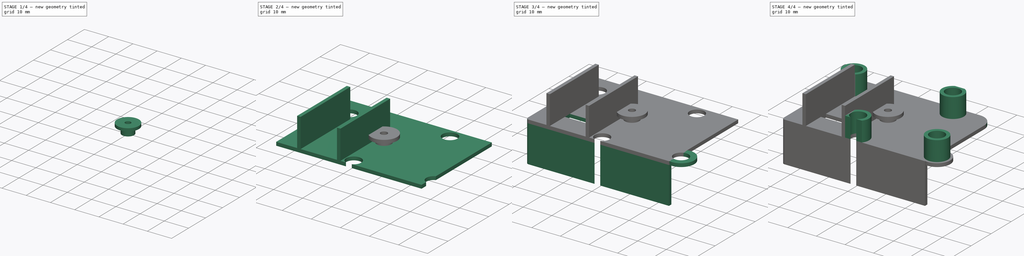
[diagram: build sequence overview — one tinted view per stage of 4, left to right]
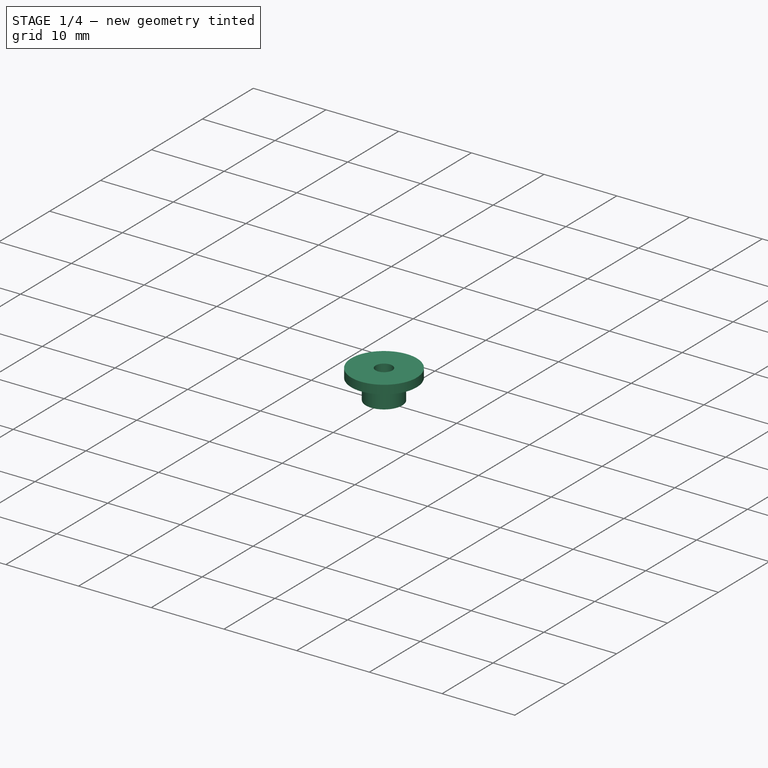
[diagram: stage 1 of 4 — iso view after this stage's code; geometry added in this stage tinted green]
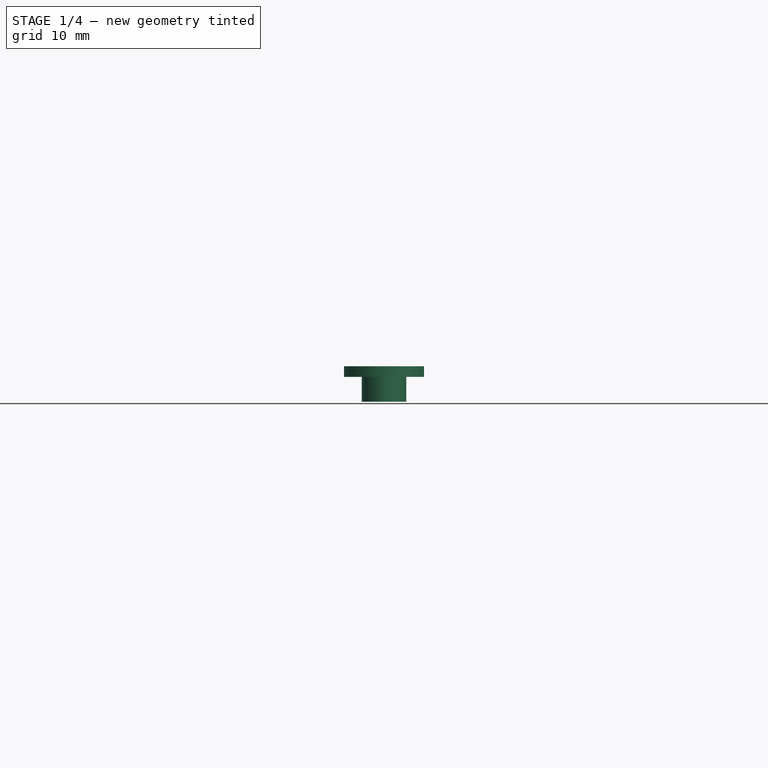
[diagram: stage 1 of 4 — front view after this stage's code; geometry added in this stage tinted green]
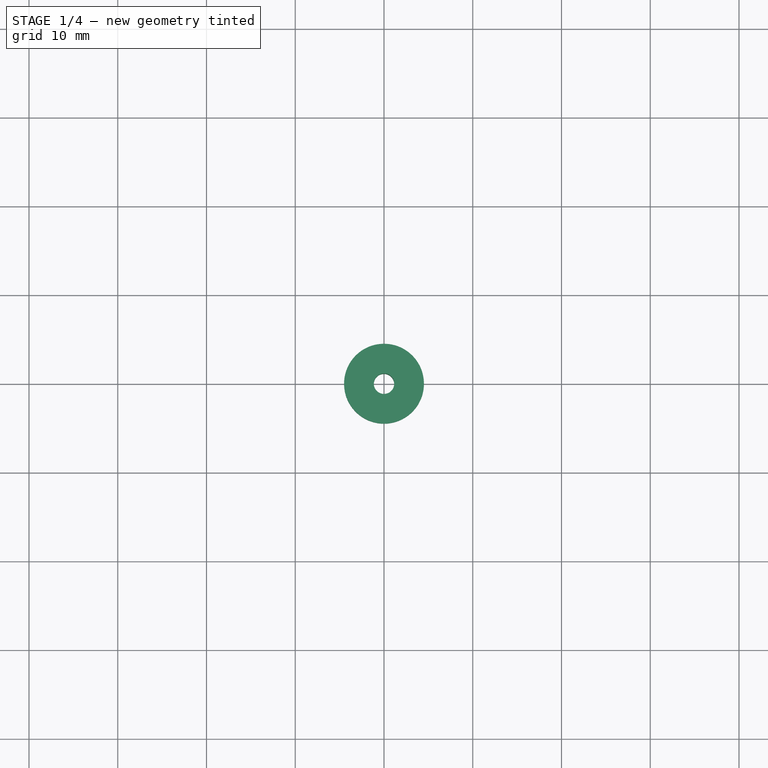
[diagram: stage 1 of 4 — top view after this stage's code; geometry added in this stage tinted green]
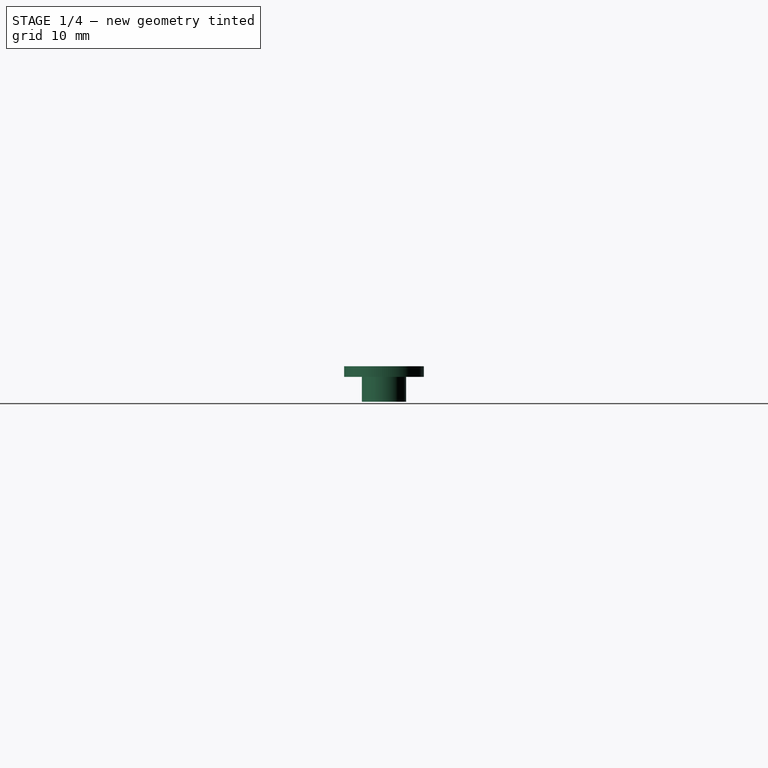
[diagram: stage 1 of 4 — right view after this stage's code; geometry added in this stage tinted green]
FCSTD DOCUMENT  (FreeCAD 0.19R24267 +148 (Git))
Label: 01-BaseMotor
License: All rights reserved
LicenseURL: http://en.wikipedia.org/wiki/All_rights_reserved
objects: Sketcher::SketchObject×11, PartDesign::Pad×7, PartDesign::Pocket×4, PartDesign::Fillet×2, PartDesign::Body×2, App::Part×2
note: 39 computed .brp shape members not serialized (recipe doc carries the construction recipe); baked Part::Feature solids carry a one-line shape summary decoded from their .brp

FEATURE [PartDesign::Body] Body
  Group = -> [Sketch,Pad,Sketch001,Pocket,Sketch002,Pad001,Sketch003,Pad002,Sketch004,Pocket001,Sketch005,Pad003,Fillet,Fillet001,Sketch006,Pad004,Sketch007,Pocket002]
  Origin = -> Origin001
  Tip = -> Pocket002
FEATURE [App::Part] Part  label="BaseMotor"
  Group = -> [Body]
  Origin = -> Origin
FEATURE [Sketcher::SketchObject] Sketch008  label="Base"
  FullyConstrained = true
  MapMode = 5
  Support = -> [XY_Plane003]
  sketch-geometry (1):
    g0: Circle CenterX=0 CenterY=0 CenterZ=0 NormalX=0 NormalY=0 NormalZ=1 AngleXU=0 Radius=2.5
  constraints (2):
    c: Coincident(g0,g-1)
    c: Radius(g0) = 2.5
FEATURE [PartDesign::Pad] Pad005  label="BasePad"
  Direction = (1,1,1)
  Length = 4
  Length2 = 100
  Profile = -> Sketch008
  Type = 0
FEATURE [Sketcher::SketchObject] Sketch010  label="Cabeca"
  FullyConstrained = true
  MapMode = 5
  Placement = pos=(0,0,4) rot=(0,0,1;0rad)
  sketch-geometry (1):
    g0: Circle CenterX=0 CenterY=0 CenterZ=0 NormalX=0 NormalY=0 NormalZ=1 AngleXU=0 Radius=4.5
  constraints (2):
    c: Coincident(g0,g-1)
    c: Radius(g0) = 4.5
FEATURE [PartDesign::Pad] Pad006  label="CabecaPad"
  BaseFeature = -> Pad005
  Direction = (1,1,1)
  Length = 1.2
  Length2 = 100
  Profile = -> Sketch010
  Reversed = true
  Type = 0
FEATURE [Sketcher::SketchObject] Sketch011  label="Furo"
  FullyConstrained = true
  MapMode = 5
  Placement = pos=(0,0,4) rot=(0,0,1;0rad)
  Support = -> [Pad006]
  sketch-geometry (1):
    g0: Circle CenterX=0 CenterY=0 CenterZ=0 NormalX=0 NormalY=0 NormalZ=1 AngleXU=0 Radius=1.15
  constraints (2):
    c: Coincident(g0,g-1)
    c: Radius(g0) = 1.15
FEATURE [PartDesign::Pocket] Pocket003  label="FuroPad"
  BaseFeature = -> Pad006
  Length = 5
  Length2 = 100
  Profile = -> Sketch011
  Type = 1
FEATURE [PartDesign::Body] Body001
  Group = -> [Sketch008,Pad005,Sketch010,Pad006,Sketch011,Pocket003]
  Origin = -> Origin003
  Tip = -> Pocket003
FEATURE [App::Part] Part001  label="JuncaoCaixaDirecao"
  Group = -> [Body001]
  Origin = -> Origin002
  Placement = pos=(-58,0,0) rot=(0,0,1;0rad)
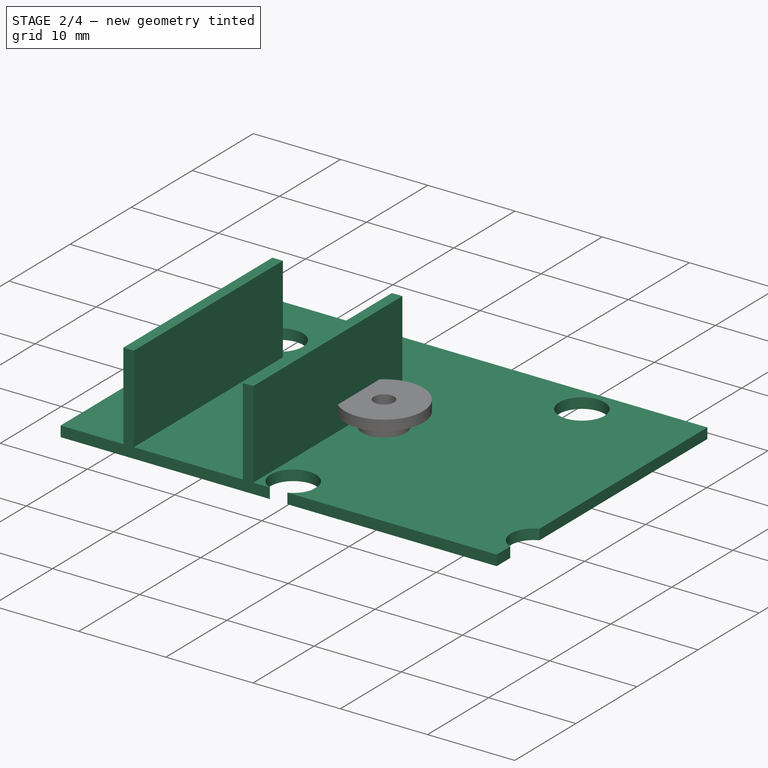
[diagram: stage 2 of 4 — iso view after this stage's code; geometry added in this stage tinted green]
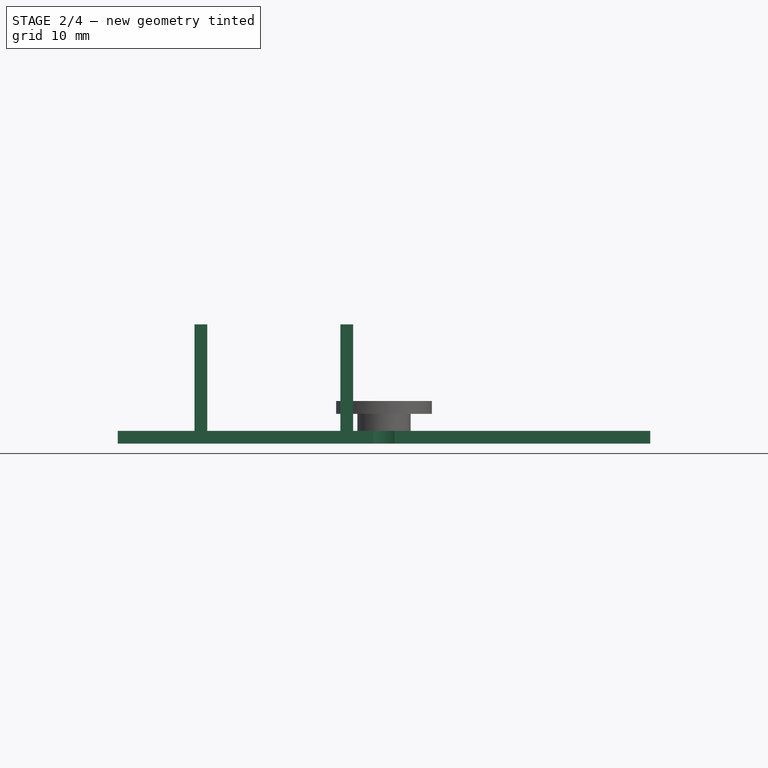
[diagram: stage 2 of 4 — front view after this stage's code; geometry added in this stage tinted green]
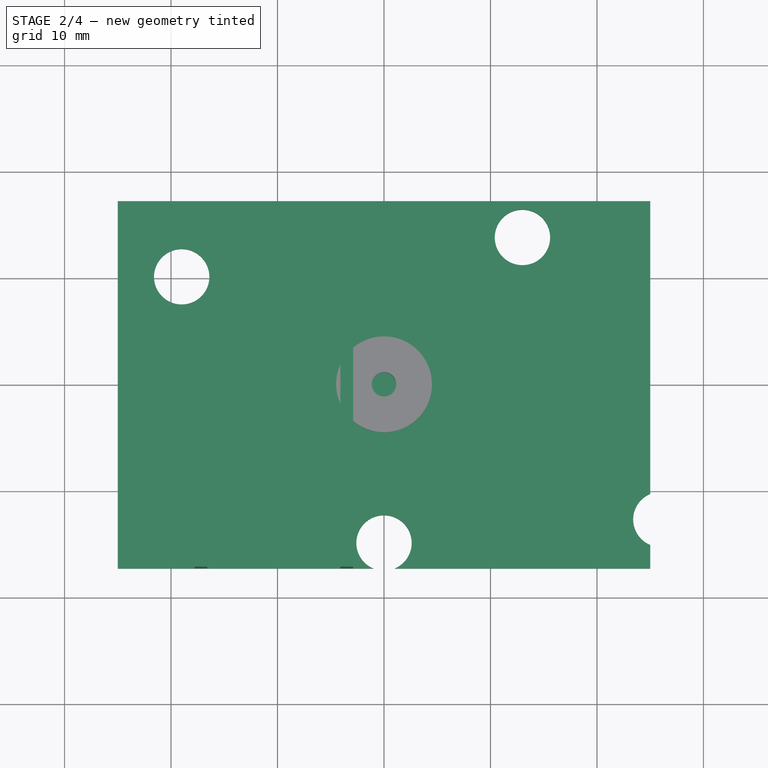
[diagram: stage 2 of 4 — top view after this stage's code; geometry added in this stage tinted green]
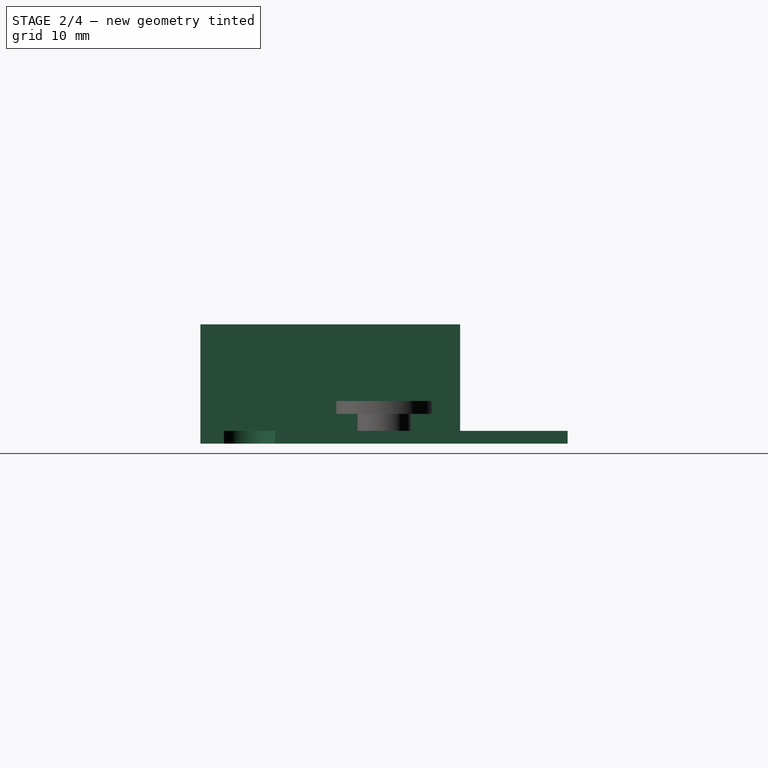
[diagram: stage 2 of 4 — right view after this stage's code; geometry added in this stage tinted green]
FEATURE [Sketcher::SketchObject] Sketch  label="Plataforma"
  FullyConstrained = true
  MapMode = 5
  Support = -> [XY_Plane001]
  sketch-geometry (4):
    g0: LineSegment StartX=-25 StartY=17.25 StartZ=0 EndX=25 EndY=17.25 EndZ=0
    g1: LineSegment StartX=25 StartY=17.25 StartZ=0 EndX=25 EndY=-17.25 EndZ=0
    g2: LineSegment StartX=25 StartY=-17.25 StartZ=0 EndX=-25 EndY=-17.25 EndZ=0
    g3: LineSegment StartX=-25 StartY=-17.25 StartZ=0 EndX=-25 EndY=17.25 EndZ=0
  constraints (10):
    c: Coincident(g0,g1)
    c: Coincident(g1,g2)
    c: Coincident(g2,g3)
    c: Coincident(g3,g0)
    c: Horizontal(g2)
    c: Vertical(g1)
    c: Symmetric(g0,g0,g-2)
    c: Symmetric(g0,g2,g-1)
    c: DistanceY(g3,g3) = 34.5
    c: DistanceX(g0,g0) = 50  'PlataformaWidth'
FEATURE [PartDesign::Pad] Pad  label="PlataformaPad"
  Direction = (1,1,1)
  Length = 1.2
  Length2 = 100
  Profile = -> Sketch
  Type = 0
FEATURE [Sketcher::SketchObject] Sketch001  label="Furos"
  ExternalGeometry = -> [Pad]
  FullyConstrained = true
  MapMode = 5
  Placement = pos=(0,0,1.2) rot=(0,0,1;0rad)
  Support = -> [Pad]
  expr: Constraints[2] = .Constraints.FuroPrincipalRaio
  expr: Constraints[3] = .Constraints.FuroPrincipalRaio
  expr: Constraints[4] = .Constraints.FuroPrincipalRaio
  sketch-geometry (4):
    g0: Circle CenterX=0 CenterY=-14.85 CenterZ=0 NormalX=0 NormalY=0 NormalZ=1 AngleXU=0 Radius=2.6
    g1: Circle CenterX=-19 CenterY=10.15 CenterZ=0 NormalX=0 NormalY=0 NormalZ=1 AngleXU=0 Radius=2.6
    g2: Circle CenterX=13 CenterY=13.8423 CenterZ=0 NormalX=0 NormalY=0 NormalZ=1 AngleXU=0 Radius=2.6
    g3: Circle CenterX=26 CenterY=-12.6388 CenterZ=0 NormalX=0 NormalY=0 NormalZ=1 AngleXU=0 Radius=2.6
  constraints (12):
    c: PointOnObject(g0,g-2)  'FuroPrincipalPontoInicial'
    c: Radius(g0) = 2.6  'FuroPrincipalRaio'
    c: Radius(g1) = 2.6
    c: Radius(g2) = 2.6
    c: Radius(g3) = 2.6
    c: DistanceX(g0,g3) = 26
    c: Distance(g2,g3) = 29.5
    c: Distance(g0,g2) = 31.5
    c: DistanceY(g-3,g0) = 2.4
    c: DistanceX(g1,g0) = 19
    c: DistanceY(g0,g1) = 25
    c: DistanceX(g1,g2) = 32
FEATURE [PartDesign::Pocket] Pocket  label="FurosPocket"
  BaseFeature = -> Pad
  Length = 5
  Length2 = 100
  Profile = -> Sketch001
  Type = 1
FEATURE [Sketcher::SketchObject] Sketch002  label="ParedesMotor"
  ExternalGeometry = -> [Pocket]
  FullyConstrained = true
  MapMode = 5
  Placement = pos=(0,0,1.2) rot=(0,0,1;0rad)
  Support = -> [Pocket]
  sketch-geometry (8):
    g0: LineSegment StartX=-4.1 StartY=7.15 StartZ=0 EndX=-4.1 EndY=-17.25 EndZ=0
    g1: LineSegment StartX=-16.6 StartY=-17.25 StartZ=0 EndX=-16.6 EndY=7.15 EndZ=0
    g2: LineSegment StartX=-2.9 StartY=7.15 StartZ=0 EndX=-4.1 EndY=7.15 EndZ=0
    g3: LineSegment StartX=-16.6 StartY=7.15 StartZ=0 EndX=-17.8 EndY=7.15 EndZ=0
    g4: LineSegment StartX=-17.8 StartY=7.15 StartZ=0 EndX=-17.8 EndY=-17.25 EndZ=0
    g5: LineSegment StartX=-16.6 StartY=-17.25 StartZ=0 EndX=-17.8 EndY=-17.25 EndZ=0
    g6: LineSegment StartX=-2.9 StartY=7.15 StartZ=0 EndX=-2.9 EndY=-17.25 EndZ=0
    g7: LineSegment StartX=-4.1 StartY=-17.25 StartZ=0 EndX=-2.9 EndY=-17.25 EndZ=0
  constraints (25):
    c: Vertical(g0)
    c: Vertical(g1)
    c: Horizontal(g2)
    c: DistanceX(g0,g2) = 1.2
    c: DistanceX(g3,g2) = 14.9
    c: DistanceY(g0,g2) = 0
    c: PointOnObject(g2,g0)
    c: PointOnObject(g3,g1)
    c: Tangent(g2,g3)
    c: Coincident(g4,g3)
    c: PointOnObject(g4,g-4)
    c: Vertical(g4)
    c: Coincident(g5,g1)
    c: Coincident(g5,g4)
    c: Horizontal(g5)
    c: Coincident(g6,g2)
    c: PointOnObject(g6,g-4)
    c: Vertical(g6)
    c: Coincident(g7,g0)
    c: Coincident(g7,g6)
    c: Horizontal(g7)
    c: DistanceX(g1,g0) = 12.5
    c: DistanceX(g-3,g1) = 2.4
    c: DistanceY(g4,g4) = 24.4
    c: DistanceY(g1,g3) = 0
FEATURE [PartDesign::Pad] Pad001  label="ParedesMotorPad"
  BaseFeature = -> Pocket
  Direction = (1,1,1)
  Length = 10
  Length2 = 100
  Profile = -> Sketch002
  Type = 0
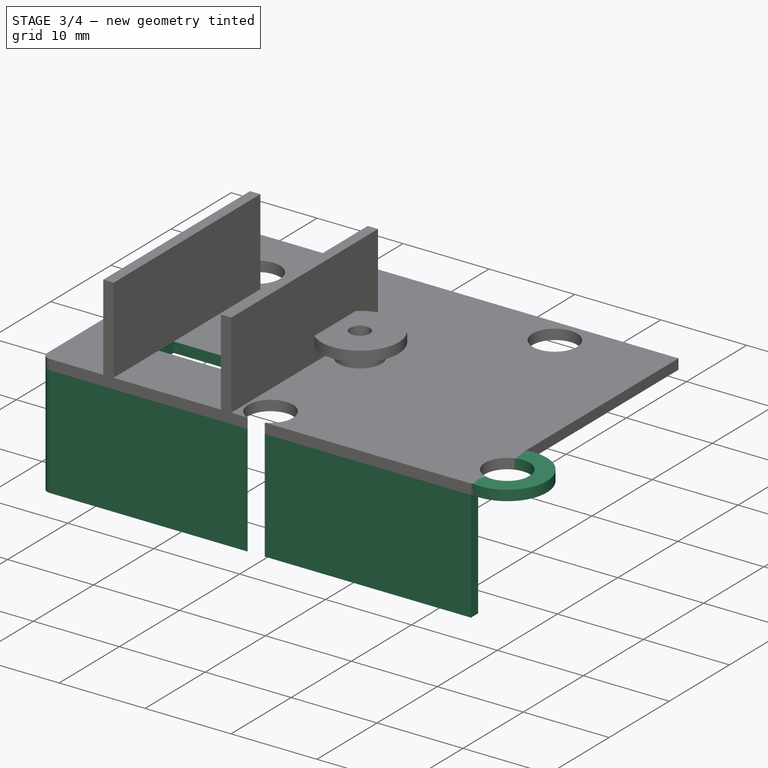
[diagram: stage 3 of 4 — iso view after this stage's code; geometry added in this stage tinted green]
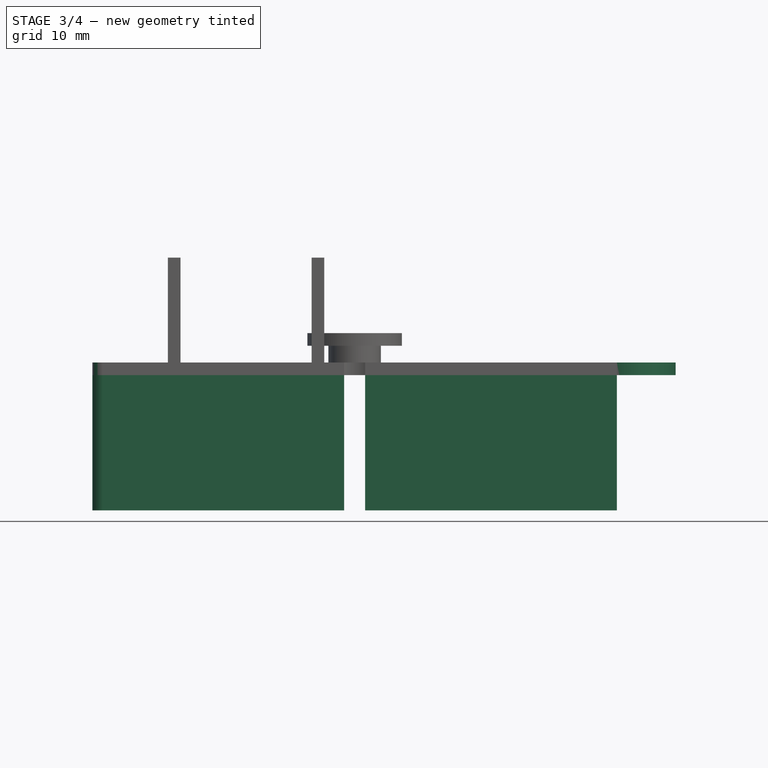
[diagram: stage 3 of 4 — front view after this stage's code; geometry added in this stage tinted green]
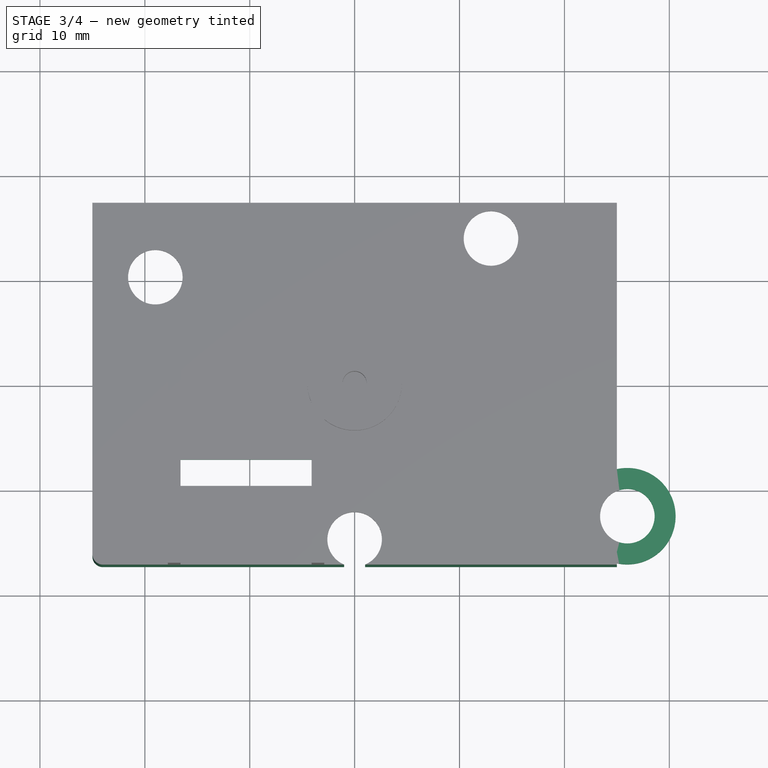
[diagram: stage 3 of 4 — top view after this stage's code; geometry added in this stage tinted green]
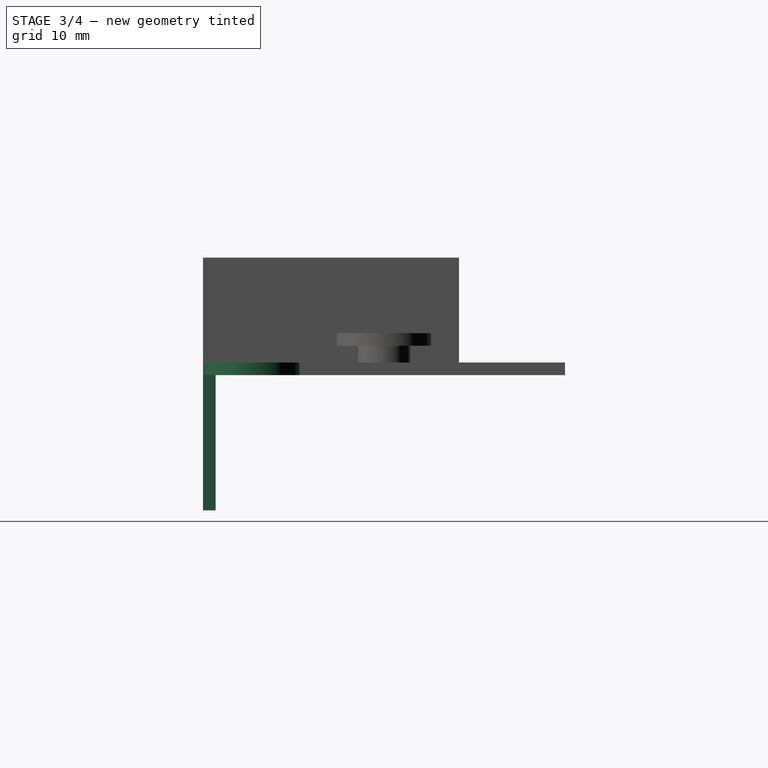
[diagram: stage 3 of 4 — right view after this stage's code; geometry added in this stage tinted green]
FEATURE [Sketcher::SketchObject] Sketch003  label="ApoioBase"
  ExternalGeometry = -> [Pad001]
  FullyConstrained = true
  MapMode = 5
  Placement = pos=(0,-17.25,0) rot=(1,0,0;1.5708rad)
  Support = -> [Pad001]
  expr: Constraints[10] = <<Plataforma>>.Constraints.PlataformaWidth
  sketch-geometry (4):
    g0: LineSegment StartX=-25 StartY=1.2 StartZ=0 EndX=25 EndY=1.2 EndZ=0
    g1: LineSegment StartX=25 StartY=1.2 StartZ=0 EndX=25 EndY=-12.9 EndZ=0
    g2: LineSegment StartX=25 StartY=-12.9 StartZ=0 EndX=-25 EndY=-12.9 EndZ=0
    g3: LineSegment StartX=-25 StartY=-12.9 StartZ=0 EndX=-25 EndY=1.2 EndZ=0
  constraints (11):
    c: Coincident(g0,g1)
    c: Coincident(g1,g2)
    c: Coincident(g2,g3)
    c: Coincident(g3,g0)
    c: Horizontal(g0)
    c: Horizontal(g2)
    c: Vertical(g1)
    c: Vertical(g3)
    c: Coincident(g0,g-3)
    c: DistanceY(g3,g3) = 14.1
    c: DistanceX(g0,g0) = 50
FEATURE [PartDesign::Pad] Pad002  label="ApoioBasePad"
  BaseFeature = -> Pad001
  Direction = (1,1,1)
  Length = 1.2
  Length2 = 100
  Profile = -> Sketch003
  Reversed = true
  Type = 0
FEATURE [Sketcher::SketchObject] Sketch004  label="GapApoioMotor"
  ExternalGeometry = -> [Pad002]
  FullyConstrained = true
  MapMode = 5
  Placement = pos=(0,0,1.2) rot=(0,0,1;0rad)
  Support = -> [Pad002]
  sketch-geometry (5):
    g0: Circle CenterX=0 CenterY=-14.85 CenterZ=0 NormalX=0 NormalY=0 NormalZ=1 AngleXU=0 Radius=2.6
    g1: LineSegment StartX=-16.6 StartY=-7.25 StartZ=0 EndX=-4.1 EndY=-7.25 EndZ=0
    g2: LineSegment StartX=-4.1 StartY=-7.25 StartZ=0 EndX=-4.1 EndY=-9.75 EndZ=0
    g3: LineSegment StartX=-4.1 StartY=-9.75 StartZ=0 EndX=-16.6 EndY=-9.75 EndZ=0
    g4: LineSegment StartX=-16.6 StartY=-9.75 StartZ=0 EndX=-16.6 EndY=-7.25 EndZ=0
  constraints (14):
    c: Coincident(g0,g-4)
    c: PointOnObject(g-4,g0)
    c: Coincident(g1,g2)
    c: Coincident(g2,g3)
    c: Coincident(g3,g4)
    c: Coincident(g4,g1)
    c: Horizontal(g1)
    c: Horizontal(g3)
    c: Vertical(g2)
    c: Vertical(g4)
    c: PointOnObject(g1,g-5)
    c: PointOnObject(g2,g-6)
    c: DistanceY(g3,g1) = 2.5
    c: DistanceY(g-3,g1) = 10
FEATURE [PartDesign::Pocket] Pocket001  label="GapApoioMotorPocket"
  BaseFeature = -> Pad002
  Length = 5
  Length2 = 100
  Profile = -> Sketch004
  Type = 1
FEATURE [Sketcher::SketchObject] Sketch005  label="ApoioParafuso"
  ExternalGeometry = -> [Pocket001]
  FullyConstrained = true
  MapMode = 5
  Placement = pos=(0,0,1.2) rot=(0,0,1;0rad)
  Support = -> [Pocket001]
  expr: Constraints[3] = <<Furos>>.Constraints.FuroPrincipalRaio + 2mm
  sketch-geometry (2):
    g0: Circle CenterX=26 CenterY=-12.6388 CenterZ=0 NormalX=0 NormalY=0 NormalZ=1 AngleXU=0 Radius=2.6
    g1: Circle CenterX=26 CenterY=-12.6388 CenterZ=0 NormalX=0 NormalY=0 NormalZ=1 AngleXU=0 Radius=4.6
  constraints (4):
    c: Coincident(g0,g-3)
    c: PointOnObject(g-3,g0)
    c: Coincident(g1,g0)
    c: Radius(g1) = 4.6
FEATURE [PartDesign::Pad] Pad003  label="ApoioParafusoPocket"
  BaseFeature = -> Pocket001
  Direction = (1,1,1)
  Length = 1.2
  Length2 = 100
  Profile = -> Sketch005
  Reversed = true
  Type = 0
  expr: Length = <<PlataformaPad>>.Length
FEATURE [PartDesign::Fillet] Fillet  label="CantoInferiorEsquerdoFillet"
  Base = -> Pad003 [Edge96,Edge39]
  BaseFeature = -> Pad003
  Radius = 1
  SupportTransform = false
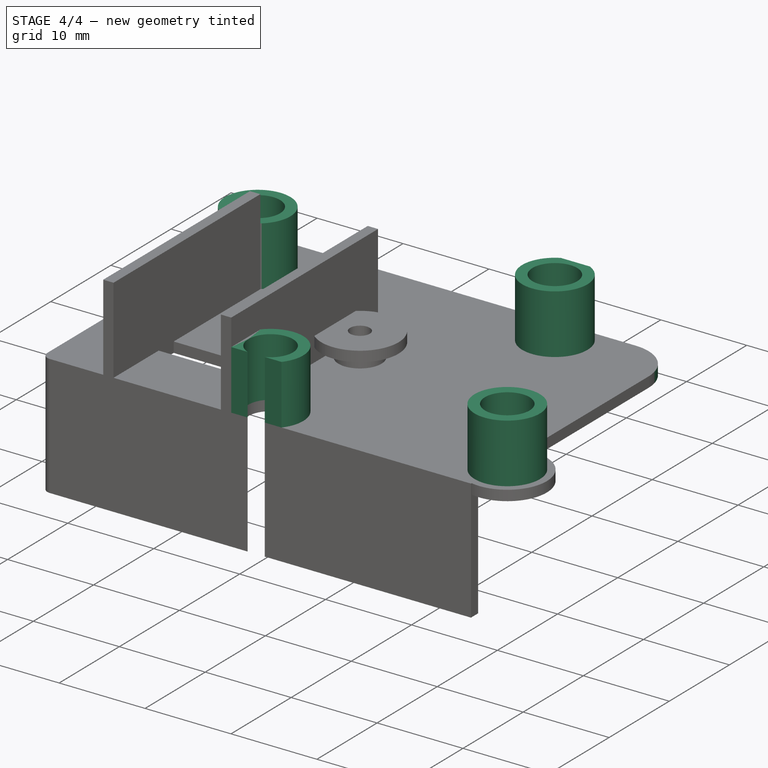
[diagram: stage 4 of 4 — iso view after this stage's code; geometry added in this stage tinted green]
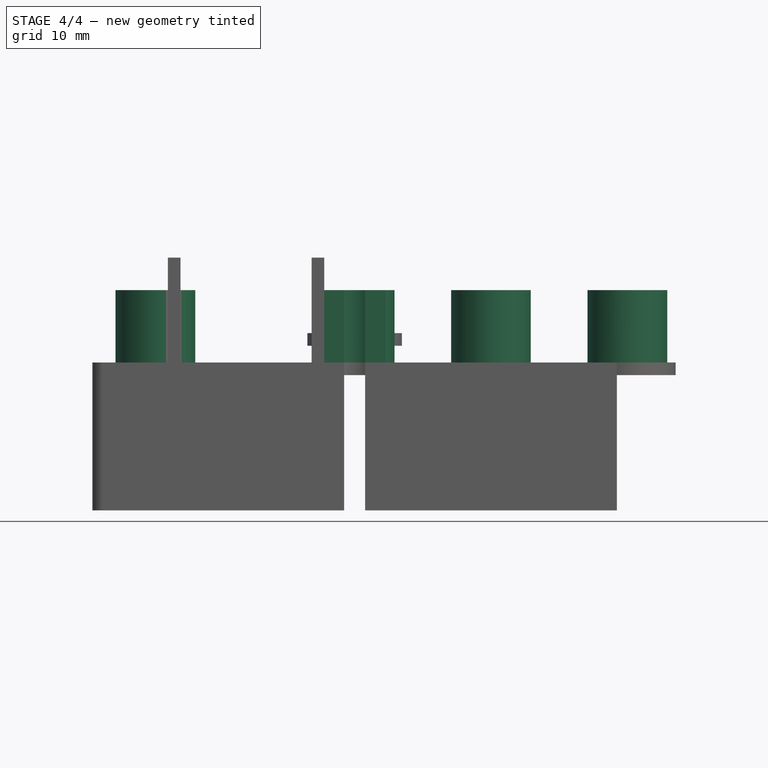
[diagram: stage 4 of 4 — front view after this stage's code; geometry added in this stage tinted green]
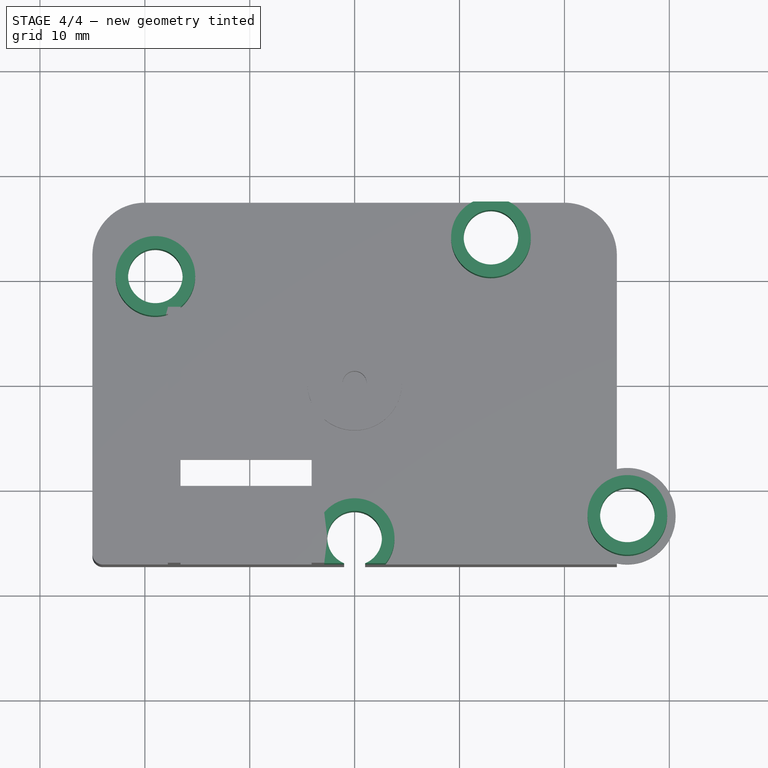
[diagram: stage 4 of 4 — top view after this stage's code; geometry added in this stage tinted green]
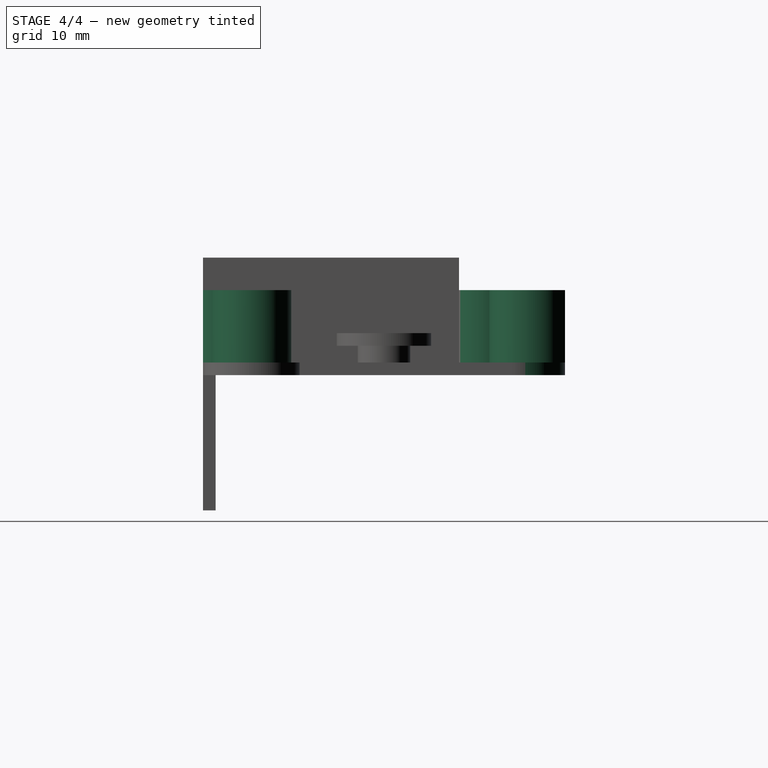
[diagram: stage 4 of 4 — right view after this stage's code; geometry added in this stage tinted green]
FEATURE [PartDesign::Fillet] Fillet001  label="CantosFillet"
  Base = -> Fillet [Edge12,Edge42]
  BaseFeature = -> Fillet
  Radius = 5
  SupportTransform = false
FEATURE [Sketcher::SketchObject] Sketch006  label="ParafusoSuporte"
  ExternalGeometry = -> [Fillet001]
  FullyConstrained = true
  MapMode = 5
  Placement = pos=(0,0,1.2) rot=(0,0,1;0rad)
  Support = -> [Fillet001]
  expr: Constraints[13] = <<Furos>>.Constraints.FuroPrincipalRaio + 1.2mm
  expr: Constraints[12] = <<Furos>>.Constraints.FuroPrincipalRaio + 1.2mm
  expr: Constraints[11] = <<Furos>>.Constraints.FuroPrincipalRaio
  expr: Constraints[10] = <<Furos>>.Constraints.FuroPrincipalRaio + 1.2mm
  expr: Constraints[14] = <<Furos>>.Constraints.FuroPrincipalRaio + 1.2mm
  expr: Constraints[9] = <<Furos>>.Constraints.FuroPrincipalRaio
  sketch-geometry (8):
    g0: Circle CenterX=-19 CenterY=10.15 CenterZ=0 NormalX=0 NormalY=0 NormalZ=1 AngleXU=0 Radius=2.6
    g1: Circle CenterX=0 CenterY=-14.85 CenterZ=0 NormalX=0 NormalY=0 NormalZ=1 AngleXU=0 Radius=2.6
    g2: Circle CenterX=26 CenterY=-12.6388 CenterZ=0 NormalX=0 NormalY=0 NormalZ=1 AngleXU=0 Radius=2.6
    g3: Circle CenterX=-19 CenterY=10.15 CenterZ=0 NormalX=0 NormalY=0 NormalZ=1 AngleXU=0 Radius=3.8
    g4: Circle CenterX=12.996 CenterY=13.84 CenterZ=0 NormalX=0 NormalY=0 NormalZ=1 AngleXU=0 Radius=3.8
    g5: Circle CenterX=26 CenterY=-12.6388 CenterZ=0 NormalX=0 NormalY=0 NormalZ=1 AngleXU=0 Radius=3.8
    g6: Circle CenterX=0 CenterY=-14.85 CenterZ=0 NormalX=0 NormalY=0 NormalZ=1 AngleXU=0 Radius=3.8
    g7: Circle CenterX=12.996 CenterY=13.84 CenterZ=0 NormalX=0 NormalY=0 NormalZ=1 AngleXU=0 Radius=2.6
  constraints (17):
    c: Coincident(g0,g-3)
    c: Coincident(g1,g-5)
    c: PointOnObject(g-5,g1)
    c: Coincident(g2,g-6)
    c: PointOnObject(g-6,g2)
    c: Coincident(g3,g0)
    c: Coincident(g5,g2)
    c: Coincident(g6,g1)
    c: Coincident(g7,g4)
    c: Radius(g7) = 2.6
    c: Radius(g4) = 3.8
    c: Radius(g0) = 2.6
    c: Radius(g5) = 3.8
    c: Radius(g3) = 3.8
    c: Radius(g6) = 3.8
    c: Distance(g4,g-7) = 3.41
    c: Distance(g4,g-7) = 7.79
FEATURE [PartDesign::Pad] Pad004  label="ParafusoSuportePad"
  BaseFeature = -> Fillet001
  Direction = (1,1,1)
  Length = 6.9
  Length2 = 100
  Profile = -> Sketch006
  Type = 0
FEATURE [Sketcher::SketchObject] Sketch007  label="RecortesParafusos"
  ExternalGeometry = -> [Pad004]
  FullyConstrained = true
  MapMode = 5
  Placement = pos=(0,0,1.2) rot=(0,0,1;0rad)
  Support = -> [Pad004]
  sketch-geometry (8):
    g0: LineSegment StartX=-4.1 StartY=-17.25 StartZ=0 EndX=-4.1 EndY=-19.25 EndZ=0
    g1: LineSegment StartX=-4.1 StartY=-19.25 StartZ=0 EndX=4.9 EndY=-19.25 EndZ=0
    g2: LineSegment StartX=4.9 StartY=-19.25 StartZ=0 EndX=4.9 EndY=-17.25 EndZ=0
    g3: LineSegment StartX=4.9 StartY=-17.25 StartZ=0 EndX=-4.1 EndY=-17.25 EndZ=0
    g4: LineSegment StartX=14.6729 StartY=17.25 StartZ=0 EndX=11.3191 EndY=17.25 EndZ=0
    g5: LineSegment StartX=11.3191 StartY=17.25 StartZ=0 EndX=11.3191 EndY=17.95 EndZ=0
    g6: LineSegment StartX=11.3191 StartY=17.95 StartZ=0 EndX=14.6729 EndY=17.95 EndZ=0
    g7: LineSegment StartX=14.6729 StartY=17.95 StartZ=0 EndX=14.6729 EndY=17.25 EndZ=0
  constraints (21):
    c: Coincident(g-3,g0)
    c: Vertical(g0)
    c: Coincident(g0,g1)
    c: Horizontal(g1)
    c: Coincident(g1,g2)
    c: Vertical(g2)
    c: Coincident(g2,g3)
    c: Coincident(g3,g0)
    c: Horizontal(g3)
    c: DistanceY(g0,g0) = 2
    c: DistanceX(g1,g1) = 9
    c: Coincident(g-4,g4)
    c: Coincident(g4,g-5)
    c: Coincident(g4,g5)
    c: Vertical(g5)
    c: Coincident(g5,g6)
    c: Horizontal(g6)
    c: Coincident(g6,g7)
    c: Coincident(g7,g4)
    c: Vertical(g7)
    c: DistanceY(g7,g7) = 0.7
FEATURE [PartDesign::Pocket] Pocket002  label="RecortesParafusosPocket"
  BaseFeature = -> Pad004
  Length = 0
  Length2 = 100
  Profile = -> Sketch007
  Type = 3
  UpToFace = -> Pad004 [Face58]
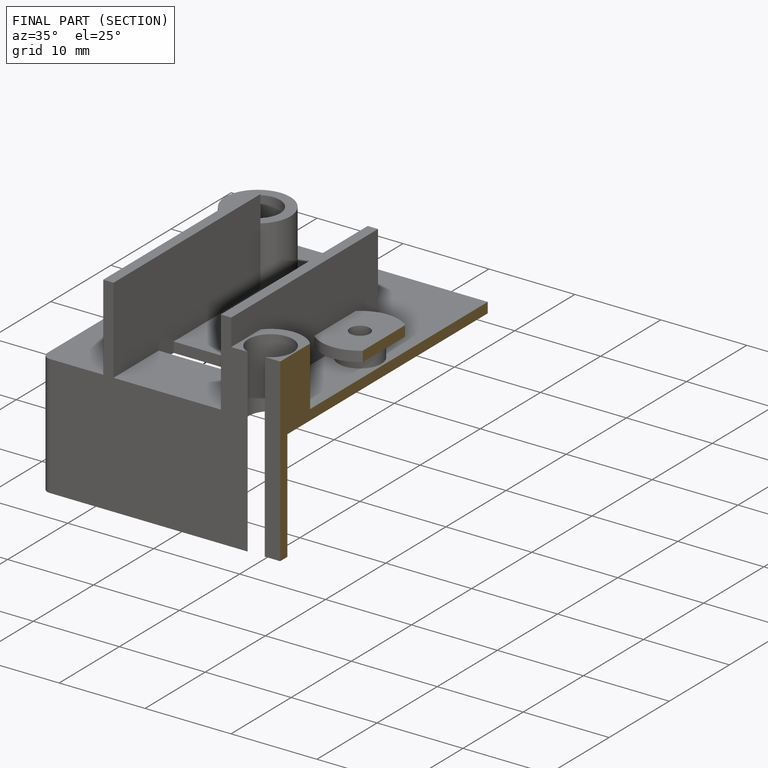
[diagram: finished part — half-section view (interior)]
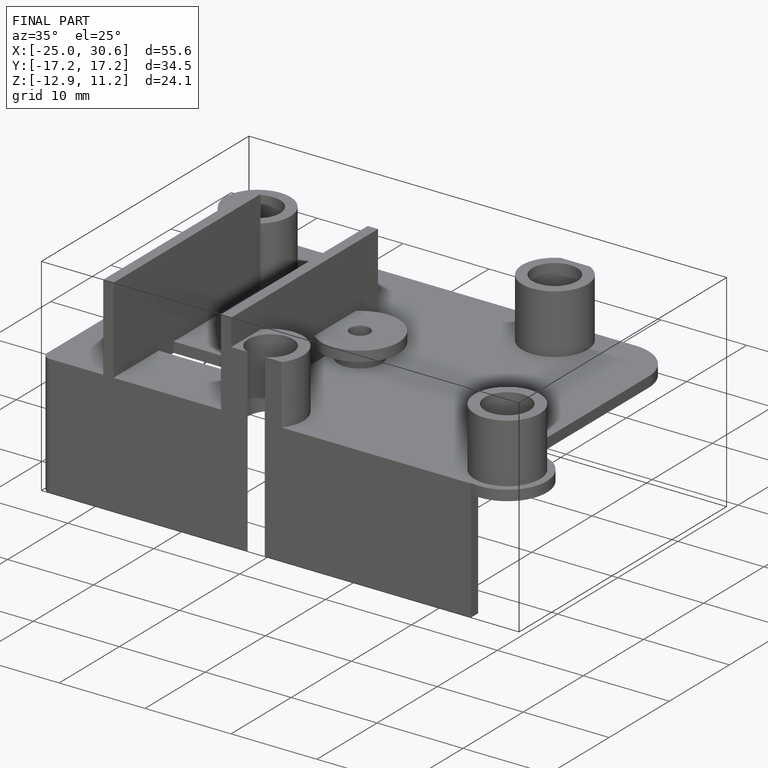
[diagram: finished part — iso view with bounding-box wireframe]
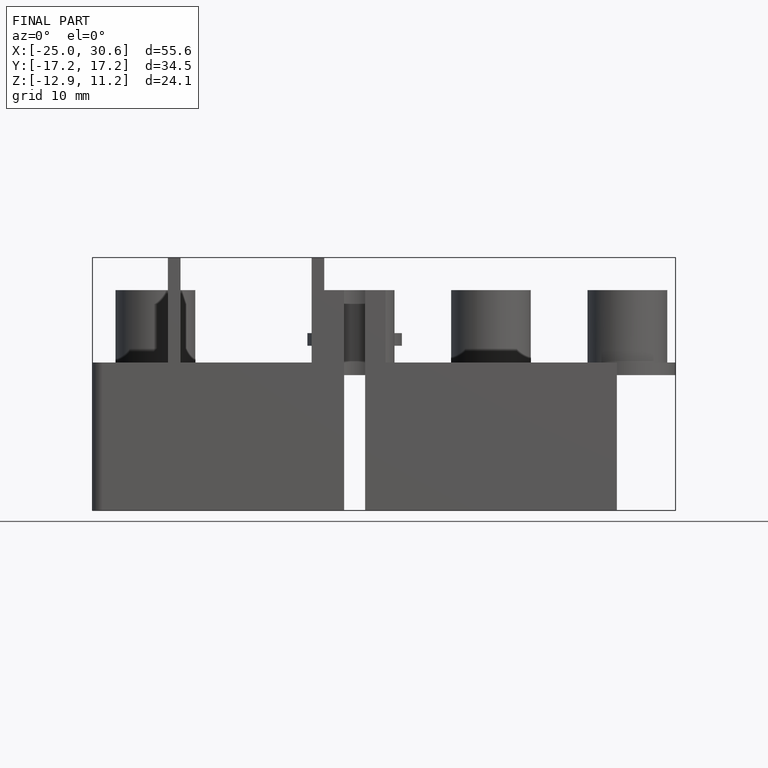
[diagram: finished part — front view with bounding-box wireframe]
